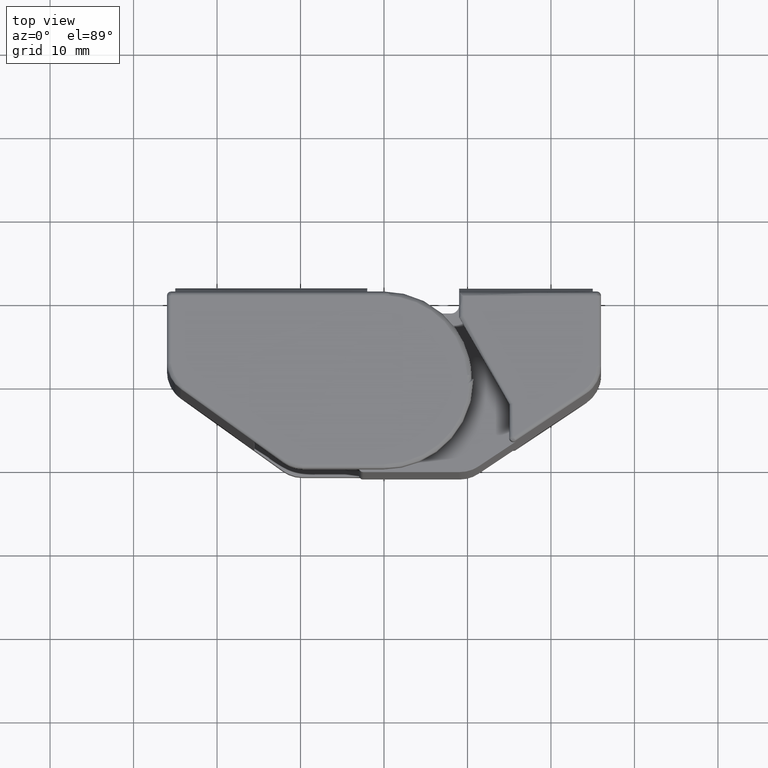
[diagram: clean part render]
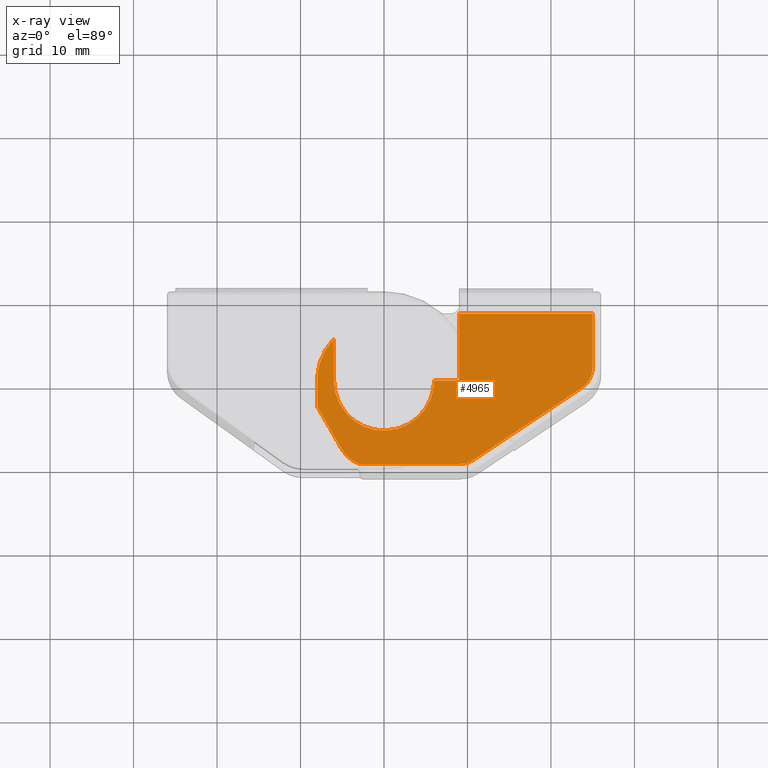
[diagram: x-ray — body ghosted, one internal face saturated and labeled with its STEP entity id]
A machine part, top view, then the same camera in x-ray: the body is ghosted and one INTERNAL B-rep face — a face not visible from any outside direction — is saturated and labeled: STEP entity #4965.
In plain terms, the highlighted face is a freeform B-spline surface patch.
Its self-contained STEP definition (entity closure, byte-faithful):
#4219=CARTESIAN_POINT('',(-3.000000000001455,-10.000000000002141,57.0));
#4220=VERTEX_POINT('',#4219);
#4226=CARTESIAN_POINT('',(-5.046190074086480,-8.259742407034862,57.0));
#4227=VERTEX_POINT('',#4226);
#4228=CARTESIAN_POINT('',(-5.046190074086477,-8.259742407034858,57.0));
#4229=CARTESIAN_POINT('',(-4.333263853983769,-9.494566842300781,57.000000000000007));
#4230=CARTESIAN_POINT('',(-3.000000000001458,-10.000000000002149,57.0));
#4238=(BOUNDED_CURVE()B_SPLINE_CURVE(2,(#4228,#4229,#4230),.UNSPECIFIED.,.F.,.U.)CURVE()GEOMETRIC_REPRESENTATION_ITEM()QUASI_UNIFORM_CURVE()RATIONAL_B_SPLINE_CURVE((1.0,0.941944545299407,1.0))REPRESENTATION_ITEM(''));
#4239=EDGE_CURVE('',#4227,#4220,#4238,.T.);
#4625=CARTESIAN_POINT('',(-6.000000000001380,-7.347638E-016,57.0));
#4626=VERTEX_POINT('',#4625);
#4627=CARTESIAN_POINT('',(-6.000000000001380,5.0,57.0));
#4628=VERTEX_POINT('',#4627);
#4629=CARTESIAN_POINT('',(-6.000000000001380,-7.347638E-016,57.0));
#4630=CARTESIAN_POINT('',(-6.000000000001380,5.0,57.0));
#4631=QUASI_UNIFORM_CURVE('',1,(#4629,#4630),.UNSPECIFIED.,.F.,.U.);
#4632=EDGE_CURVE('',#4626,#4628,#4631,.T.);
#4676=CARTESIAN_POINT('',(5.999999999998620,0.0,57.0));
#4677=VERTEX_POINT('',#4676);
#4678=CARTESIAN_POINT('',(-6.000000000001380,-7.347638E-016,57.0));
#4679=CARTESIAN_POINT('',(-6.000063751941791,-0.441789147968788,57.000000000000043));
#4680=CARTESIAN_POINT('',(-5.901998091987109,-1.325334429807477,56.999999999999957));
#4681=CARTESIAN_POINT('',(-5.548556657563370,-2.352747983156929,56.999999999999993));
#4682=CARTESIAN_POINT('',(-5.050422803377436,-3.284631848734071,56.999999999999972));
#4683=CARTESIAN_POINT('',(-4.398331824253063,-4.152831518238082,57.000000000000057));
#4684=CARTESIAN_POINT('',(-3.495427471539756,-4.922050087917582,57.000000000000348));
#4685=CARTESIAN_POINT('',(-2.660251511530690,-5.395037961965446,56.999999999999353));
#4686=CARTESIAN_POINT('',(-1.933763736389278,-5.695972647246165,57.000000000000682));
#4687=CARTESIAN_POINT('',(-1.079897830165746,-5.932312936105891,56.999999999999822));
#4688=CARTESIAN_POINT('',(-0.147269314293511,-6.024159192089694,56.999999999998153));
#4689=CARTESIAN_POINT('',(0.859012990683305,-5.962327407090115,57.000000000002188));
#4690=CARTESIAN_POINT('',(1.701855574283209,-5.778499705190456,56.999999999999211));
#4691=CARTESIAN_POINT('',(2.596611209342994,-5.433335311337920,56.999999999999403));
#4692=CARTESIAN_POINT('',(3.389687518053929,-4.984091082780409,57.000000000002700));
#4693=CARTESIAN_POINT('',(4.135701825637385,-4.379458739820657,56.999999999998387));
#4694=CARTESIAN_POINT('',(4.796814527251062,-3.650052882872999,57.000000000002778));
#4695=CARTESIAN_POINT('',(5.289426338803625,-2.882573853771105,56.999999999998302));
#4696=CARTESIAN_POINT('',(5.678061902574696,-2.005821715011732,57.000000000000888));
#4697=CARTESIAN_POINT('',(5.934281435697353,-1.079888503440966,56.999999999997968));
#4698=CARTESIAN_POINT('',(6.000041879081022,-0.368146332307259,57.000000000001073));
#4699=CARTESIAN_POINT('',(5.999999999998620,0.0,57.0));
#4700=B_SPLINE_CURVE_WITH_KNOTS('',3,(#4678,#4679,#4680,#4681,#4682,#4683,#4684,#4685,#4686,#4687,#4688,#4689,#4690,#4691,#4692,#4693,#4694,#4695,#4696,#4697,#4698,#4699),.UNSPECIFIED.,.F.,.U.,(4,1,1,1,1,1,1,1,1,1,1,1,1,1,1,1,1,1,1,4),(0.000000020155657,1.325365211480836,2.650718508459416,3.239774571513800,4.491523177765453,5.890528356071608,6.774123415048591,7.363157086495994,8.246760066137568,9.424837708615995,10.161119523054129,11.265593338712680,12.001914246429090,13.032771108415240,13.989992909492200,14.873580659073809,15.978068013128000,16.714390231040650,17.745237594670542,18.849674194573161),.UNSPECIFIED.);
#4701=EDGE_CURVE('',#4626,#4677,#4700,.T.);
#4744=CARTESIAN_POINT('',(8.999999999998851,0.0,57.0));
#4745=VERTEX_POINT('',#4744);
#4746=CARTESIAN_POINT('',(8.999999999998851,0.0,57.0));
#4747=CARTESIAN_POINT('',(5.999999999998620,0.0,57.0));
#4748=QUASI_UNIFORM_CURVE('',1,(#4746,#4747),.UNSPECIFIED.,.F.,.U.);
#4749=EDGE_CURVE('',#4745,#4677,#4748,.T.);
#4772=CARTESIAN_POINT('',(8.999999999998851,8.0,57.0));
#4773=VERTEX_POINT('',#4772);
#4774=CARTESIAN_POINT('',(8.999999999998851,8.0,57.0));
#4775=CARTESIAN_POINT('',(8.999999999998851,0.0,57.0));
#4776=QUASI_UNIFORM_CURVE('',1,(#4774,#4775),.UNSPECIFIED.,.F.,.U.);
#4777=EDGE_CURVE('',#4773,#4745,#4776,.T.);
#4800=CARTESIAN_POINT('',(24.999999999999101,8.0,57.0));
#4801=VERTEX_POINT('',#4800);
#4802=CARTESIAN_POINT('',(24.999999999999101,8.0,57.0));
#4803=CARTESIAN_POINT('',(8.999999999998851,8.0,57.0));
#4804=QUASI_UNIFORM_CURVE('',1,(#4802,#4803),.UNSPECIFIED.,.F.,.U.);
#4805=EDGE_CURVE('',#4801,#4773,#4804,.T.);
#4830=CARTESIAN_POINT('',(-8.000000000001380,-3.143593539448970,57.0));
#4831=VERTEX_POINT('',#4830);
#4832=CARTESIAN_POINT('',(-8.000000000001380,-3.143593539448970,57.0));
#4833=CARTESIAN_POINT('',(-5.046190074086480,-8.259742407034862,57.0));
#4834=QUASI_UNIFORM_CURVE('',1,(#4832,#4833),.UNSPECIFIED.,.F.,.U.);
#4835=EDGE_CURVE('',#4831,#4227,#4834,.T.);
#4850=CARTESIAN_POINT('',(-8.000000000001380,0.0,57.0));
#4851=VERTEX_POINT('',#4850);
#4852=CARTESIAN_POINT('',(-8.000000000001380,0.0,57.0));
#4853=CARTESIAN_POINT('',(-8.000000000001380,-3.143593539448970,57.0));
#4854=QUASI_UNIFORM_CURVE('',1,(#4852,#4853),.UNSPECIFIED.,.F.,.U.);
#4855=EDGE_CURVE('',#4851,#4831,#4854,.T.);
#4881=CARTESIAN_POINT('',(-6.000000000001381,4.999999999999999,57.0));
#4882=CARTESIAN_POINT('',(-8.000000000001379,2.900000000000000,57.0));
#4883=CARTESIAN_POINT('',(-8.000000000001379,0.0,57.0));
#4891=(BOUNDED_CURVE()B_SPLINE_CURVE(2,(#4881,#4882,#4883),.UNSPECIFIED.,.F.,.U.)CURVE()GEOMETRIC_REPRESENTATION_ITEM()QUASI_UNIFORM_CURVE()RATIONAL_B_SPLINE_CURVE((1.0,0.928476690885259,1.0))REPRESENTATION_ITEM(''));
#4892=EDGE_CURVE('',#4628,#4851,#4891,.T.);
#4900=CARTESIAN_POINT('',(-9.648349936041001,-10.899099965114880,57.0));
#4901=CARTESIAN_POINT('',(26.648350821167700,-10.899099965114880,57.0));
#4902=CARTESIAN_POINT('',(-9.648349936041001,8.899100447910243,57.0));
#4903=CARTESIAN_POINT('',(26.648350821167700,8.899100447910243,57.0));
#4904=B_SPLINE_SURFACE_WITH_KNOTS('',1,1,((#4900,#4902),(#4901,#4903)),.UNSPECIFIED.,.F.,.F.,.U.,(2,2),(2,2),(0.0,36.296700757208697),(0.0,19.798200413025121),.UNSPECIFIED.);
#4905=ORIENTED_EDGE('',*,*,#4835,.T.);
#4906=ORIENTED_EDGE('',*,*,#4239,.T.);
#4907=CARTESIAN_POINT('',(9.091673086802739,-10.000000000002260,57.0));
#4908=VERTEX_POINT('',#4907);
#4909=CARTESIAN_POINT('',(-3.000000000001455,-10.000000000002141,57.0));
#4910=CARTESIAN_POINT('',(9.091673086802739,-10.000000000002260,57.0));
#4911=QUASI_UNIFORM_CURVE('',1,(#4909,#4910),.UNSPECIFIED.,.F.,.U.);
#4912=EDGE_CURVE('',#4220,#4908,#4911,.T.);
#4913=ORIENTED_EDGE('',*,*,#4912,.T.);
#4914=CARTESIAN_POINT('',(10.755773675478441,-9.496150883015741,57.0));
#4915=VERTEX_POINT('',#4914);
#4916=CARTESIAN_POINT('',(9.091673086802739,-10.000000000002210,57.0));
#4917=CARTESIAN_POINT('',(9.999999999998728,-10.000000000002210,57.000000000000007));
#4918=CARTESIAN_POINT('',(10.755773675478430,-9.496150883015728,57.0));
#4926=(BOUNDED_CURVE()B_SPLINE_CURVE(2,(#4916,#4917,#4918),.UNSPECIFIED.,.F.,.U.)CURVE()GEOMETRIC_REPRESENTATION_ITEM()QUASI_UNIFORM_CURVE()RATIONAL_B_SPLINE_CURVE((1.0,0.957092026489051,1.0))REPRESENTATION_ITEM(''));
#4927=EDGE_CURVE('',#4908,#4915,#4926,.T.);
#4928=ORIENTED_EDGE('',*,*,#4927,.T.);
#4929=CARTESIAN_POINT('',(23.664100588674799,-0.890599607549554,57.0));
#4930=VERTEX_POINT('',#4929);
#4931=CARTESIAN_POINT('',(10.755773675478441,-9.496150883015741,57.0));
#4932=CARTESIAN_POINT('',(23.664100588674799,-0.890599607549554,57.0));
#4933=QUASI_UNIFORM_CURVE('',1,(#4931,#4932),.UNSPECIFIED.,.F.,.U.);
#4934=EDGE_CURVE('',#4915,#4930,#4933,.T.);
#4935=ORIENTED_EDGE('',*,*,#4934,.T.);
#4936=CARTESIAN_POINT('',(24.999999999999101,1.605551275463995,57.0));
#4937=VERTEX_POINT('',#4936);
#4938=CARTESIAN_POINT('',(24.999999999999201,1.605551275463995,57.0));
#4939=CARTESIAN_POINT('',(24.999999999999201,-4.683753E-014,57.0));
#4940=CARTESIAN_POINT('',(23.664100588674820,-0.890599607549581,57.0));
#4948=(BOUNDED_CURVE()B_SPLINE_CURVE(2,(#4938,#4939,#4940),.UNSPECIFIED.,.F.,.U.)CURVE()GEOMETRIC_REPRESENTATION_ITEM()QUASI_UNIFORM_CURVE()RATIONAL_B_SPLINE_CURVE((1.0,0.881674598767937,1.0))REPRESENTATION_ITEM(''));
#4949=EDGE_CURVE('',#4937,#4930,#4948,.T.);
#4950=ORIENTED_EDGE('',*,*,#4949,.F.);
#4951=CARTESIAN_POINT('',(24.999999999999101,1.605551275463995,57.0));
#4952=CARTESIAN_POINT('',(24.999999999999101,8.0,57.0));
#4953=QUASI_UNIFORM_CURVE('',1,(#4951,#4952),.UNSPECIFIED.,.F.,.U.);
#4954=EDGE_CURVE('',#4937,#4801,#4953,.T.);
#4955=ORIENTED_EDGE('',*,*,#4954,.T.);
#4956=ORIENTED_EDGE('',*,*,#4805,.T.);
#4957=ORIENTED_EDGE('',*,*,#4777,.T.);
#4958=ORIENTED_EDGE('',*,*,#4749,.T.);
#4959=ORIENTED_EDGE('',*,*,#4701,.F.);
#4960=ORIENTED_EDGE('',*,*,#4632,.T.);
#4961=ORIENTED_EDGE('',*,*,#4892,.T.);
#4962=ORIENTED_EDGE('',*,*,#4855,.T.);
#4963=EDGE_LOOP('',(#4905,#4906,#4913,#4928,#4935,#4950,#4955,#4956,#4957,#4958,#4959,#4960,#4961,#4962));
#4964=FACE_OUTER_BOUND('',#4963,.T.);
#4965=ADVANCED_FACE('',(#4964),#4904,.T.);